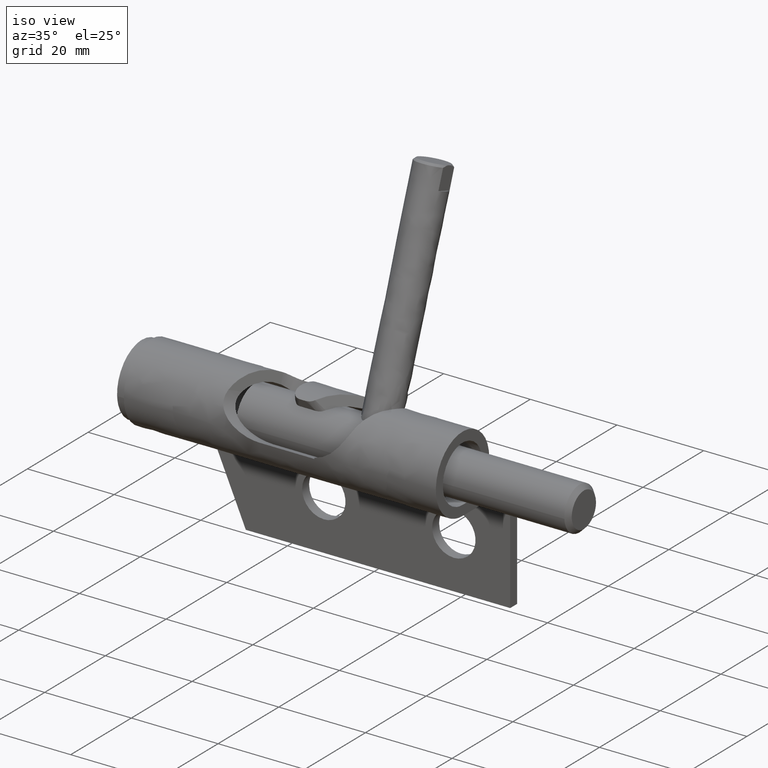
[diagram: clean part render]
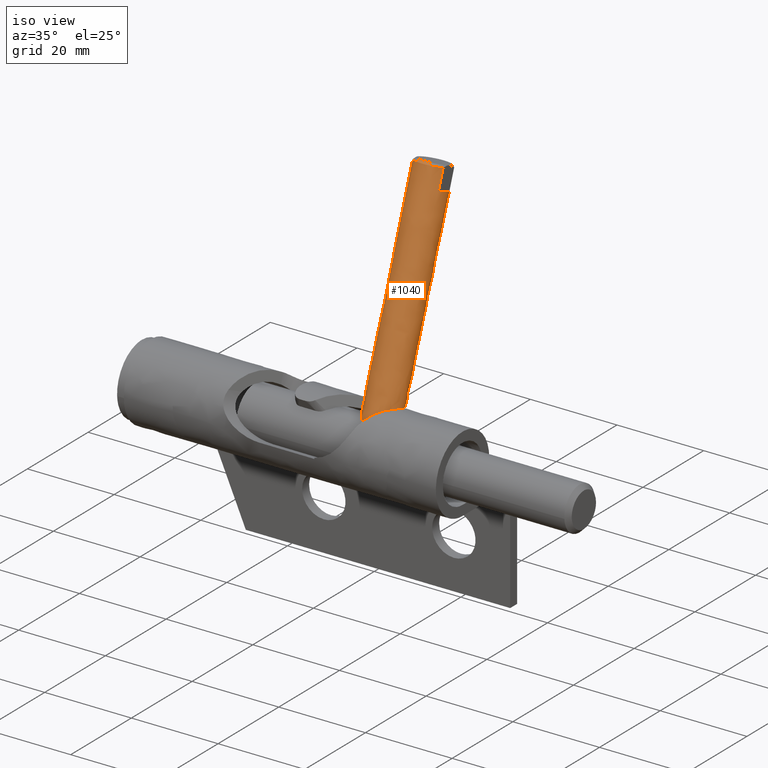
[diagram: same view with one face highlighted and labeled with its STEP entity id]
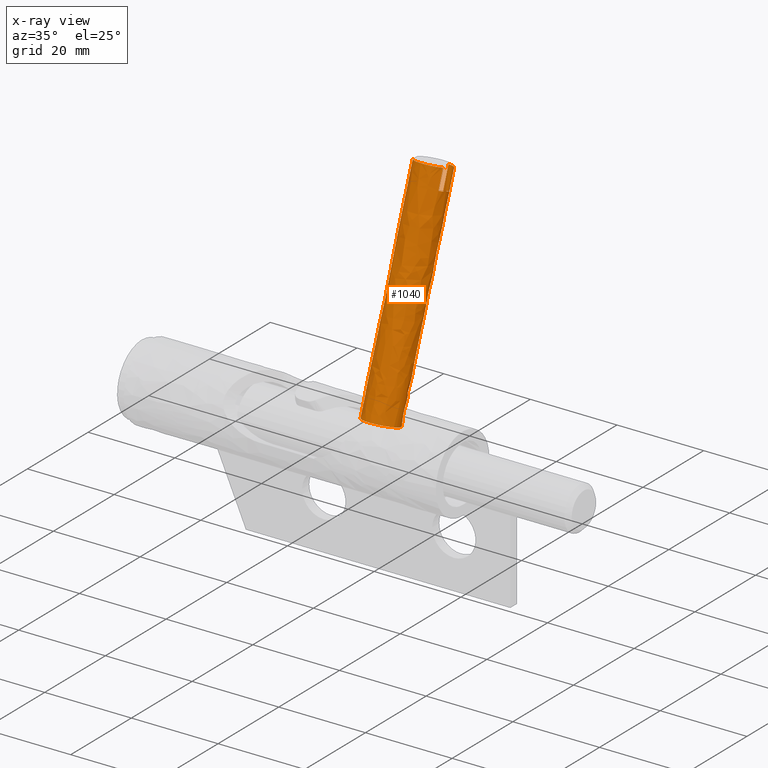
[diagram: x-ray of the same camera — body ghosted, the highlighted face saturated]
A machine part, iso view. The second image highlights one B-rep face of the part: STEP entity #1040.
The next image is the same camera in x-ray: the body ghosted, the highlighted face saturated — about 0% of this face is hidden behind the body in this view.
In plain terms, the highlighted face is a freeform B-spline surface patch.
Its self-contained STEP definition (entity closure, byte-faithful):
#739=CARTESIAN_POINT('',(-10.499999999999799,-0.837550889428728,74.815258956457001));
#740=VERTEX_POINT('',#739);
#768=CARTESIAN_POINT('',(-4.831761420129726,-2.176504781954013,75.302598472960341));
#769=VERTEX_POINT('',#768);
#770=CARTESIAN_POINT('',(-4.831761420129726,-2.176504781954013,75.302598472960341));
#771=CARTESIAN_POINT('',(-5.821826119913478,-2.776633389560681,75.521027492140732));
#772=CARTESIAN_POINT('',(-6.999999999999800,-2.776633389560681,75.521027492140746));
#773=CARTESIAN_POINT('',(-9.358307166896822,-2.776633389560681,75.521027492140746));
#774=CARTESIAN_POINT('',(-10.499999999999790,-0.837550889428751,74.815258956456944));
#782=(BOUNDED_CURVE()B_SPLINE_CURVE(2,(#770,#771,#772,#773,#774),.UNSPECIFIED.,.F.,.U.)B_SPLINE_CURVE_WITH_KNOTS((3,2,3),(0.231595552991589,0.500000000000000,1.0),.UNSPECIFIED.)CURVE()GEOMETRIC_REPRESENTATION_ITEM()RATIONAL_B_SPLINE_CURVE((0.931089357804319,0.925613163437789,1.0,0.861427712187123,1.0))REPRESENTATION_ITEM(''));
#783=EDGE_CURVE('',#769,#740,#782,.T.);
#829=CARTESIAN_POINT('',(-3.499999999999800,-0.837550889428731,74.815258956457001));
#830=VERTEX_POINT('',#829);
#831=CARTESIAN_POINT('',(-3.499999999999811,-0.837550889428749,74.815258956456944));
#832=CARTESIAN_POINT('',(-3.986786508057924,-1.664322479568605,75.116179301247982));
#833=CARTESIAN_POINT('',(-4.831761420129726,-2.176504781954012,75.302598472960355));
#841=(BOUNDED_CURVE()B_SPLINE_CURVE(2,(#831,#832,#833),.UNSPECIFIED.,.F.,.U.)B_SPLINE_CURVE_WITH_KNOTS((3,3),(0.0,0.231595552991589),.UNSPECIFIED.)CURVE()GEOMETRIC_REPRESENTATION_ITEM()RATIONAL_B_SPLINE_CURVE((1.0,0.935814548749334,0.931089357804319))REPRESENTATION_ITEM(''));
#842=EDGE_CURVE('',#830,#769,#841,.T.);
#844=CARTESIAN_POINT('',(-3.499999999999800,2.801789091536415,73.490647110882293));
#845=VERTEX_POINT('',#844);
#873=CARTESIAN_POINT('',(-6.097572105836812,4.643964010710496,72.820150061328931));
#874=VERTEX_POINT('',#873);
#875=CARTESIAN_POINT('',(-6.097572105836812,4.643964010710496,72.820150061328931));
#876=CARTESIAN_POINT('',(-4.362302501256673,4.266347369845609,72.957591322159729));
#877=CARTESIAN_POINT('',(-3.499999999999795,2.801789091536405,73.490647110882250));
#885=(BOUNDED_CURVE()B_SPLINE_CURVE(2,(#875,#876,#877),.UNSPECIFIED.,.F.,.U.)B_SPLINE_CURVE_WITH_KNOTS((3,3),(0.609102255925275,1.0),.UNSPECIFIED.)CURVE()GEOMETRIC_REPRESENTATION_ITEM()RATIONAL_B_SPLINE_CURVE((0.952721545763805,0.891664810605344,1.0))REPRESENTATION_ITEM(''));
#886=EDGE_CURVE('',#874,#845,#885,.T.);
#920=CARTESIAN_POINT('',(-6.097572105860898,5.075764667030032,74.006512237976509));
#921=CARTESIAN_POINT('',(-3.027669880649892,4.407715066585860,74.249662484671830));
#922=CARTESIAN_POINT('',(-3.000171305862064,1.446720644407068,75.327376659992822));
#923=CARTESIAN_POINT('',(-2.965265329662641,-2.311888724430073,76.695399026380613));
#924=CARTESIAN_POINT('',(-6.965094023800377,-2.344689611469021,76.707337576706877));
#925=CARTESIAN_POINT('',(-10.964922717938114,-2.377490498507970,76.719276127033140));
#926=CARTESIAN_POINT('',(-10.999828694137539,1.381118870329172,75.351253760645349));
#927=CARTESIAN_POINT('',(-6.097572105860898,-13.070657914577872,24.149641764284819));
#928=CARTESIAN_POINT('',(-3.027669880649892,-13.738707515022044,24.392792010980131));
#929=CARTESIAN_POINT('',(-3.000171305862064,-16.699701937200839,25.470506186301130));
#930=CARTESIAN_POINT('',(-2.965265329662641,-20.458311306037981,26.838528552688913));
#931=CARTESIAN_POINT('',(-6.965094023800377,-20.491112193076930,26.850467103015180));
#932=CARTESIAN_POINT('',(-10.964922717938114,-20.523913080115879,26.862405653341447));
#933=CARTESIAN_POINT('',(-10.999828694137539,-16.765303711278740,25.494383286953660));
#941=(BOUNDED_SURFACE()B_SPLINE_SURFACE(2,1,((#920,#927),(#921,#928),(#922,#929),(#923,#930),(#924,#931),(#925,#932),(#926,#933)),.UNSPECIFIED.,.F.,.F.,.U.)B_SPLINE_SURFACE_WITH_KNOTS((3,2,2,3),(2,2),(0.0,5.567003836511724,12.194389356168539,18.821774875825351),(0.0,53.056575331816887),.UNSPECIFIED.)GEOMETRIC_REPRESENTATION_ITEM()RATIONAL_B_SPLINE_SURFACE(((0.921270302782944,0.921270302782944),(0.753969696196700,0.753969696196700),(1.0,1.0),(0.707106781186548,0.707106781186548),(1.0,1.0),(0.707106781186548,0.707106781186548),(1.0,1.0)))REPRESENTATION_ITEM('')SURFACE());
#942=ORIENTED_EDGE('',*,*,#886,.T.);
#943=CARTESIAN_POINT('',(-3.499999999999800,1.262698015519184,69.262030474235786));
#944=VERTEX_POINT('',#943);
#945=CARTESIAN_POINT('',(-3.499999999999800,2.801789091536415,73.490647110882293));
#946=CARTESIAN_POINT('',(-3.499999999999800,1.262698015519184,69.262030474235786));
#947=QUASI_UNIFORM_CURVE('',1,(#945,#946),.UNSPECIFIED.,.F.,.U.);
#948=EDGE_CURVE('',#845,#944,#947,.T.);
#949=ORIENTED_EDGE('',*,*,#948,.T.);
#950=CARTESIAN_POINT('',(-3.499999999999800,-2.376641965445960,70.586642319810409));
#951=VERTEX_POINT('',#950);
#952=CARTESIAN_POINT('',(-3.499999999999795,-2.376641965445951,70.586642319810437));
#953=CARTESIAN_POINT('',(-2.428614854393513,-0.556971974963389,69.924336397023097));
#954=CARTESIAN_POINT('',(-3.499999999999794,1.262698015519174,69.262030474235758));
#962=(BOUNDED_CURVE()B_SPLINE_CURVE(2,(#952,#953,#954),.UNSPECIFIED.,.F.,.U.)CURVE()GEOMETRIC_REPRESENTATION_ITEM()QUASI_UNIFORM_CURVE()RATIONAL_B_SPLINE_CURVE((1.0,0.875004156016509,1.0))REPRESENTATION_ITEM(''));
#963=EDGE_CURVE('',#951,#944,#962,.T.);
#964=ORIENTED_EDGE('',*,*,#963,.F.);
#965=CARTESIAN_POINT('',(-3.499999999999800,-2.376641965445960,70.586642319810409));
#966=CARTESIAN_POINT('',(-3.499999999999800,-0.837550889428731,74.815258956457001));
#967=QUASI_UNIFORM_CURVE('',1,(#965,#966),.UNSPECIFIED.,.F.,.U.);
#968=EDGE_CURVE('',#951,#830,#967,.T.);
#969=ORIENTED_EDGE('',*,*,#968,.T.);
#970=ORIENTED_EDGE('',*,*,#842,.T.);
#971=ORIENTED_EDGE('',*,*,#783,.T.);
#972=CARTESIAN_POINT('',(-10.499999999999799,-2.376641965445960,70.586642319810409));
#973=VERTEX_POINT('',#972);
#974=CARTESIAN_POINT('',(-10.499999999999799,-2.376641965445960,70.586642319810409));
#975=CARTESIAN_POINT('',(-10.499999999999799,-0.837550889428728,74.815258956457001));
#976=QUASI_UNIFORM_CURVE('',1,(#974,#975),.UNSPECIFIED.,.F.,.U.);
#977=EDGE_CURVE('',#973,#740,#976,.T.);
#978=ORIENTED_EDGE('',*,*,#977,.F.);
#979=CARTESIAN_POINT('',(-10.999828692004799,-0.589773091649756,69.936275030934667));
#980=VERTEX_POINT('',#979);
#981=CARTESIAN_POINT('',(-10.499999999999810,-2.376641965445951,70.586642319810437));
#982=CARTESIAN_POINT('',(-10.990978321373314,-1.542750884311632,70.283130691392401));
#983=CARTESIAN_POINT('',(-10.999828692004801,-0.589773091649756,69.936275030934667));
#991=(BOUNDED_CURVE()B_SPLINE_CURVE(2,(#981,#982,#983),.UNSPECIFIED.,.F.,.U.)B_SPLINE_CURVE_WITH_KNOTS((3,3),(0.0,0.491550139312004),.UNSPECIFIED.)CURVE()GEOMETRIC_REPRESENTATION_ITEM()RATIONAL_B_SPLINE_CURVE((1.0,0.938558275476493,0.937519927451185))REPRESENTATION_ITEM(''));
#992=EDGE_CURVE('',#973,#980,#991,.T.);
#993=ORIENTED_EDGE('',*,*,#992,.T.);
#994=CARTESIAN_POINT('',(-10.999829083066070,-16.322708042068310,26.710404519297480));
#995=VERTEX_POINT('',#994);
#996=CARTESIAN_POINT('',(-10.999828692004799,-0.589773091649756,69.936275030934667));
#997=CARTESIAN_POINT('',(-10.999829083066070,-16.322708042068310,26.710404519297480));
#998=QUASI_UNIFORM_CURVE('',1,(#996,#997),.UNSPECIFIED.,.F.,.U.);
#999=EDGE_CURVE('',#980,#995,#998,.T.);
#1000=ORIENTED_EDGE('',*,*,#999,.T.);
#1001=CARTESIAN_POINT('',(-6.999999999999800,-20.048660373112160,28.066540692219249));
#1002=VERTEX_POINT('',#1001);
#1003=CARTESIAN_POINT('',(-6.999999999999800,-20.048660373112160,28.066540692219249));
#1004=CARTESIAN_POINT('',(-10.965226779068058,-20.048660373112160,28.066540692219245));
#1005=CARTESIAN_POINT('',(-10.999829083066075,-16.322708042068317,26.710404519297477));
#1013=(BOUNDED_CURVE()B_SPLINE_CURVE(2,(#1003,#1004,#1005),.UNSPECIFIED.,.F.,.U.)B_SPLINE_CURVE_WITH_KNOTS((3,3),(0.500000000000000,0.748460105634809),.UNSPECIFIED.)CURVE()GEOMETRIC_REPRESENTATION_ITEM()RATIONAL_B_SPLINE_CURVE((1.0,0.708910879655562,0.996414028030506))REPRESENTATION_ITEM(''));
#1014=EDGE_CURVE('',#1002,#995,#1013,.T.);
#1015=ORIENTED_EDGE('',*,*,#1014,.F.);
#1016=CARTESIAN_POINT('',(-6.097572018080046,-12.628061885795590,25.365662865755141));
#1017=VERTEX_POINT('',#1016);
#1018=CARTESIAN_POINT('',(-6.097572018080046,-12.628061885795592,25.365662865755141));
#1019=CARTESIAN_POINT('',(-3.000018220949490,-13.302128443347028,25.611003106432957));
#1020=CARTESIAN_POINT('',(-3.000018220949490,-16.289907151517649,26.698465967693050));
#1021=CARTESIAN_POINT('',(-3.000018220949489,-20.048660373112163,28.066540692219249));
#1022=CARTESIAN_POINT('',(-6.999999999999800,-20.048660373112160,28.066540692219249));
#1030=(BOUNDED_CURVE()B_SPLINE_CURVE(2,(#1018,#1019,#1020,#1021,#1022),.UNSPECIFIED.,.F.,.U.)B_SPLINE_CURVE_WITH_KNOTS((3,2,3),(0.038577028218024,0.250000000000000,0.500000000000000),.UNSPECIFIED.)CURVE()GEOMETRIC_REPRESENTATION_ITEM()RATIONAL_B_SPLINE_CURVE((0.923556557438518,0.752302581054686,1.0,0.707106781186548,1.0))REPRESENTATION_ITEM(''));
#1031=EDGE_CURVE('',#1017,#1002,#1030,.T.);
#1032=ORIENTED_EDGE('',*,*,#1031,.F.);
#1033=CARTESIAN_POINT('',(-6.097572105836812,4.643964010710496,72.820150061328931));
#1034=CARTESIAN_POINT('',(-6.097572018080046,-12.628061885795590,25.365662865755141));
#1035=QUASI_UNIFORM_CURVE('',1,(#1033,#1034),.UNSPECIFIED.,.F.,.U.);
#1036=EDGE_CURVE('',#874,#1017,#1035,.T.);
#1037=ORIENTED_EDGE('',*,*,#1036,.F.);
#1038=EDGE_LOOP('',(#942,#949,#964,#969,#970,#971,#978,#993,#1000,#1015,#1032,#1037));
#1039=FACE_OUTER_BOUND('',#1038,.T.);
#1040=ADVANCED_FACE('',(#1039),#941,.T.);